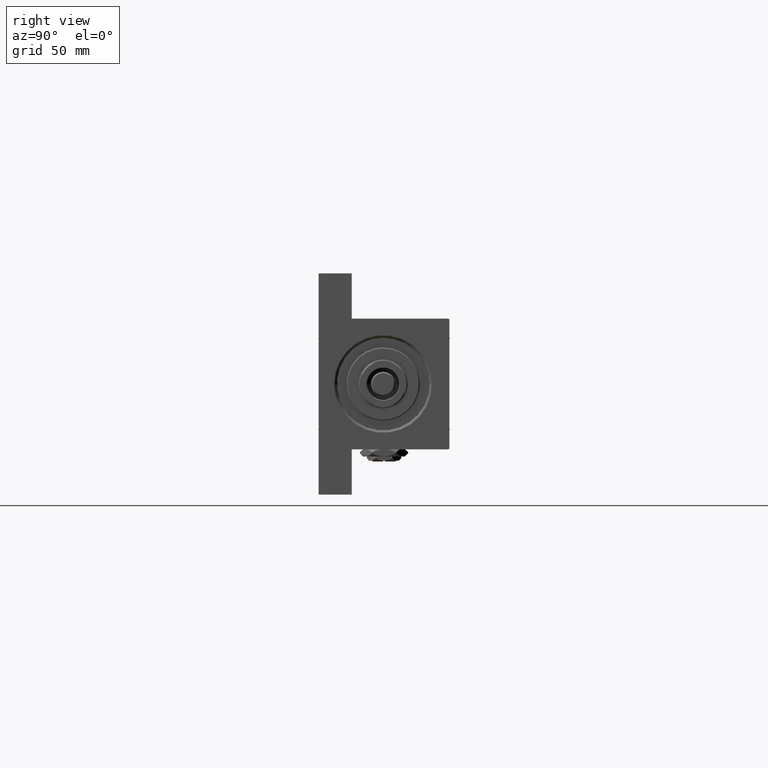
[diagram: clean part render]
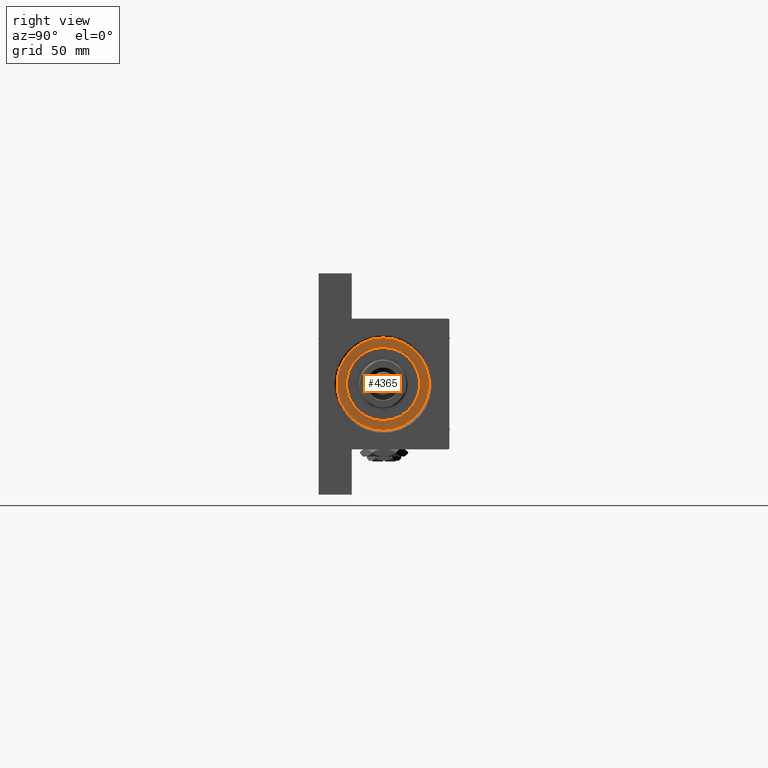
[diagram: same view with one face highlighted and labeled with its STEP entity id]
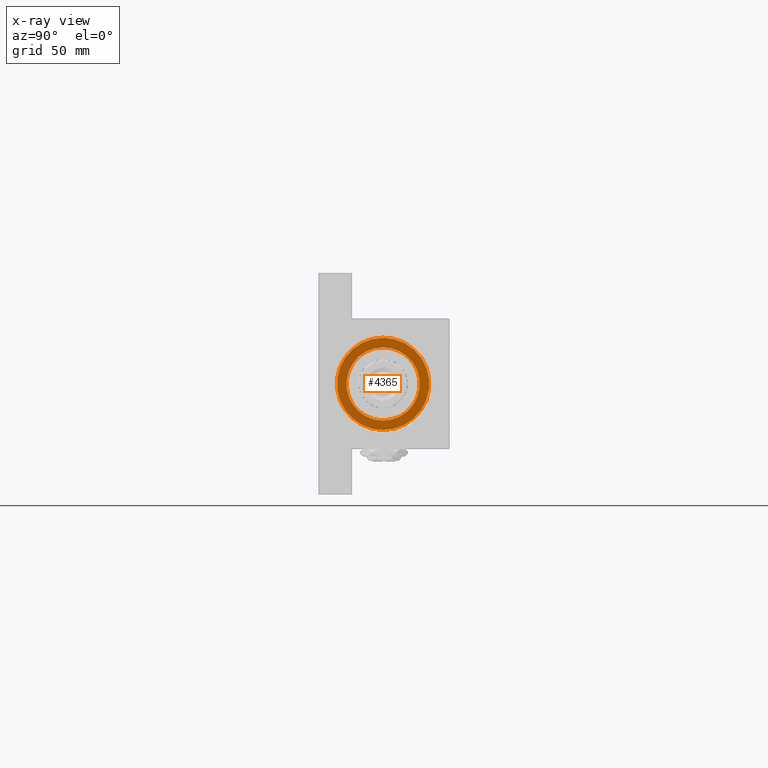
[diagram: x-ray of the same camera — body ghosted, the highlighted face saturated]
A machine part, right view. The second image highlights one B-rep face of the part: STEP entity #4365.
The next image is the same camera in x-ray: the body ghosted, the highlighted face saturated — about 0% of this face is hidden behind the body in this view.
In plain terms, the highlighted planar face has unit normal (1, 0, 0).
Its self-contained STEP definition (entity closure, byte-faithful):
#43 = VERTEX_POINT ( 'NONE', #43491 ) ;
#512 = EDGE_CURVE ( 'NONE', #20093, #29060, #7956, .T. ) ;
#589 = AXIS2_PLACEMENT_3D ( 'NONE', #47774, #10043, #48271 ) ;
#1583 = CARTESIAN_POINT ( 'NONE',  ( 26.50000000000000355, 3.245314017740486554E-15, 28.69999999999999929 ) ) ;
#1813 = EDGE_LOOP ( 'NONE', ( #43401, #4721 ) ) ;
#3685 = CARTESIAN_POINT ( 'NONE',  ( 0.000000000000000000, 0.000000000000000000, 28.69999999999999929 ) ) ;
#4365 = ADVANCED_FACE ( 'NONE', ( #26388, #41801 ), #22334, .T. ) ;
#4375 = ORIENTED_EDGE ( 'NONE', *, *, #512, .F. ) ;
#4621 = DIRECTION ( 'NONE',  ( 1.000000000000000000, 0.000000000000000000, 0.000000000000000000 ) ) ;
#4721 = ORIENTED_EDGE ( 'NONE', *, *, #33892, .T. ) ;
#7415 = CIRCLE ( 'NONE', #17908, 26.50000000000000355 ) ;
#7462 = EDGE_CURVE ( 'NONE', #43, #33105, #7415, .T. ) ;
#7956 = CIRCLE ( 'NONE', #37853, 21.00000000000000000 ) ;
#8174 = DIRECTION ( 'NONE',  ( 0.000000000000000000, 0.000000000000000000, 1.000000000000000000 ) ) ;
#10043 = DIRECTION ( 'NONE',  ( 0.000000000000000000, 0.000000000000000000, 1.000000000000000000 ) ) ;
#15252 = DIRECTION ( 'NONE',  ( 1.000000000000000000, 0.000000000000000000, -0.000000000000000000 ) ) ;
#15365 = AXIS2_PLACEMENT_3D ( 'NONE', #45618, #30919, #15252 ) ;
#15574 = DIRECTION ( 'NONE',  ( 0.000000000000000000, 0.000000000000000000, 1.000000000000000000 ) ) ;
#15936 = CIRCLE ( 'NONE', #589, 26.50000000000000355 ) ;
#17908 = AXIS2_PLACEMENT_3D ( 'NONE', #20798, #8174, #4621 ) ;
#18818 = CARTESIAN_POINT ( 'NONE',  ( -21.00000000000000000, 0.000000000000000000, 28.69999999999999929 ) ) ;
#19360 = ORIENTED_EDGE ( 'NONE', *, *, #21652, .F. ) ;
#20093 = VERTEX_POINT ( 'NONE', #24996 ) ;
#20798 = CARTESIAN_POINT ( 'NONE',  ( 0.000000000000000000, 0.000000000000000000, 28.69999999999999929 ) ) ;
#21652 = EDGE_CURVE ( 'NONE', #29060, #20093, #25585, .T. ) ;
#21831 = DIRECTION ( 'NONE',  ( 0.000000000000000000, 0.000000000000000000, 1.000000000000000000 ) ) ;
#22073 = DIRECTION ( 'NONE',  ( 1.000000000000000000, 0.000000000000000000, 0.000000000000000000 ) ) ;
#22334 = PLANE ( 'NONE',  #15365 ) ;
#23403 = DIRECTION ( 'NONE',  ( 1.000000000000000000, 0.000000000000000000, 0.000000000000000000 ) ) ;
#24996 = CARTESIAN_POINT ( 'NONE',  ( 21.00000000000000000, 2.571758278209441661E-15, 28.69999999999999929 ) ) ;
#25133 = CARTESIAN_POINT ( 'NONE',  ( 0.000000000000000000, 0.000000000000000000, 28.69999999999999929 ) ) ;
#25585 = CIRCLE ( 'NONE', #44694, 21.00000000000000000 ) ;
#26388 = FACE_BOUND ( 'NONE', #45517, .T. ) ;
#29060 = VERTEX_POINT ( 'NONE', #18818 ) ;
#30919 = DIRECTION ( 'NONE',  ( 0.000000000000000000, 0.000000000000000000, 1.000000000000000000 ) ) ;
#33105 = VERTEX_POINT ( 'NONE', #1583 ) ;
#33892 = EDGE_CURVE ( 'NONE', #33105, #43, #15936, .T. ) ;
#37853 = AXIS2_PLACEMENT_3D ( 'NONE', #3685, #15574, #23403 ) ;
#41801 = FACE_OUTER_BOUND ( 'NONE', #1813, .T. ) ;
#43401 = ORIENTED_EDGE ( 'NONE', *, *, #7462, .T. ) ;
#43491 = CARTESIAN_POINT ( 'NONE',  ( -26.50000000000000355, 0.000000000000000000, 28.69999999999999929 ) ) ;
#44694 = AXIS2_PLACEMENT_3D ( 'NONE', #25133, #21831, #22073 ) ;
#45517 = EDGE_LOOP ( 'NONE', ( #19360, #4375 ) ) ;
#45618 = CARTESIAN_POINT ( 'NONE',  ( 0.000000000000000000, 0.000000000000000000, 28.69999999999999929 ) ) ;
#47774 = CARTESIAN_POINT ( 'NONE',  ( 0.000000000000000000, 0.000000000000000000, 28.69999999999999929 ) ) ;
#48271 = DIRECTION ( 'NONE',  ( 1.000000000000000000, 0.000000000000000000, 0.000000000000000000 ) ) ;